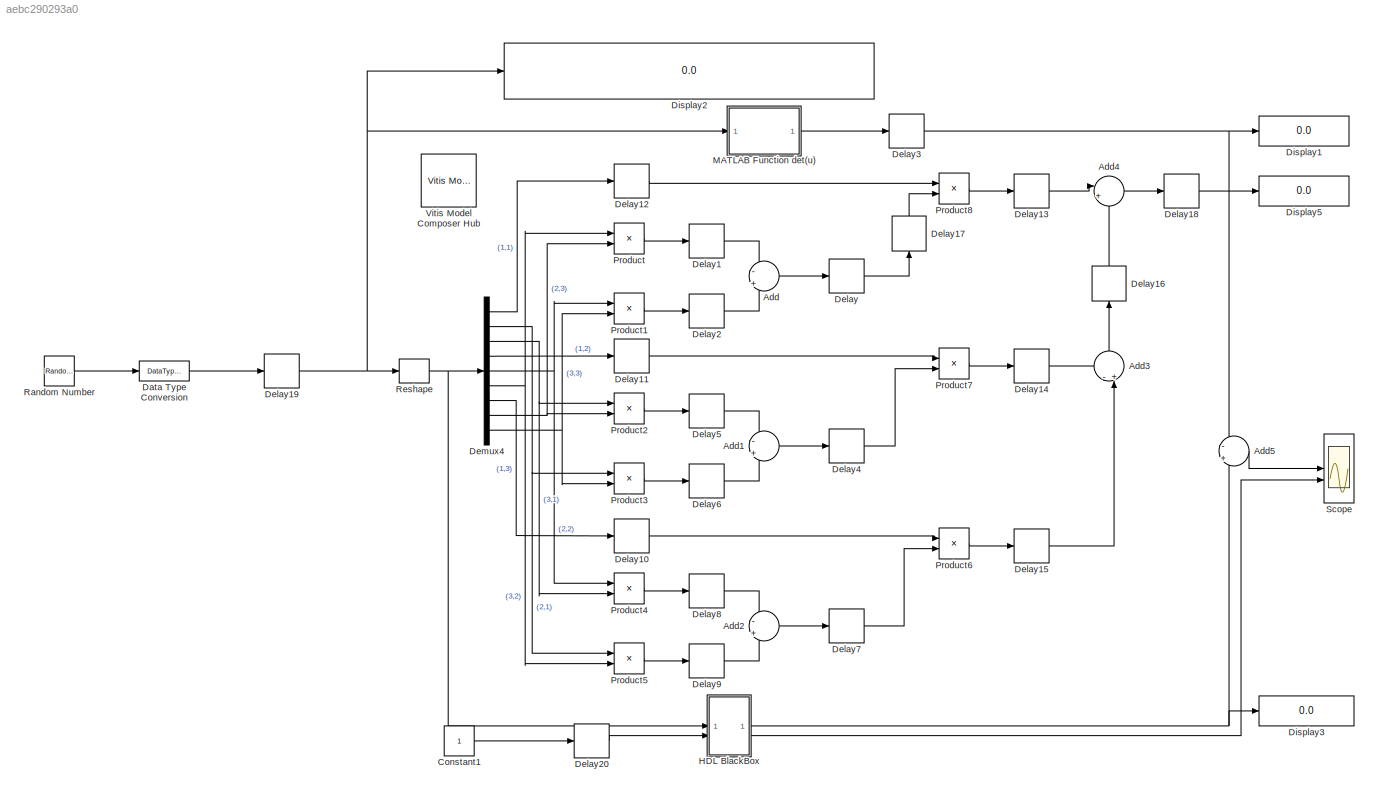
MODEL mdl_aebc290293a0
KIND model
CONFIG AbsTol = auto
CONFIG EnableMultiTasking = off
CONFIG FixedStep = auto
CONFIG MaxStep = auto
CONFIG MinStep = auto
CONFIG RelTol = 1e-3
CONFIG SampleTimeConstraint = Unconstrained
CONFIG SolverName = VariableStepAuto
CONFIG StartTime = 0.0
CONFIG StopTime = 200e-9
BLOCK [Sum] Add
  Inputs = -|+
BLOCK [Sum] Add1
  Inputs = -|+
BLOCK [Sum] Add2
  Inputs = -|+
BLOCK [Sum] Add3
  Inputs = -+|
  NameLocation = right
BLOCK [Sum] Add4
  Inputs = |++
BLOCK [Sum] Add5
  Inputs = -|+
BLOCK [Constant] Constant1
  OutDataTypeStr = single
  SampleTime = 1/805e6
BLOCK [DataTypeConversion] Data Type Conversion
  OutDataTypeStr = single
  RndMeth = Floor
  SaturateOnIntegerOverflow = off
BLOCK [Delay] Delay
  DelayLength = 1
  InputPortMap = u0
BLOCK [Delay] Delay1
  DelayLength = 3
  InputPortMap = u0
BLOCK [Delay] Delay10
  DelayLength = 4
  InputPortMap = u0
BLOCK [Delay] Delay11
  DelayLength = 4
  InputPortMap = u0
BLOCK [Delay] Delay12
  DelayLength = 5
  InputPortMap = u0
BLOCK [Delay] Delay13
  DelayLength = 3
  InputPortMap = u0
BLOCK [Delay] Delay14
  DelayLength = 3
  InputPortMap = u0
BLOCK [Delay] Delay15
  DelayLength = 3
  InputPortMap = u0
BLOCK [Delay] Delay16
  DelayLength = 1
  InputPortMap = u0
  NameLocation = right
BLOCK [Delay] Delay17
  DelayLength = 1
  InputPortMap = u0
  NameLocation = right
BLOCK [Delay] Delay18
  DelayLength = 1
  InputPortMap = u0
BLOCK [Delay] Delay19
  DelayLength = 81
  InputPortMap = u0
BLOCK [Delay] Delay2
  DelayLength = 3
  InputPortMap = u0
BLOCK [Delay] Delay20
  DelayLength = 80
  InputPortMap = u0
BLOCK [Delay] Delay3
  DelayLength = 9
  InputPortMap = u0
BLOCK [Delay] Delay4
  DelayLength = 1
  InputPortMap = u0
BLOCK [Delay] Delay5
  DelayLength = 3
  InputPortMap = u0
BLOCK [Delay] Delay6
  DelayLength = 3
  InputPortMap = u0
BLOCK [Delay] Delay7
  DelayLength = 1
  InputPortMap = u0
BLOCK [Delay] Delay8
  DelayLength = 3
  InputPortMap = u0
BLOCK [Delay] Delay9
  DelayLength = 3
  InputPortMap = u0
BLOCK [Demux] Demux4
  Outputs = 9
BLOCK [Display] Display1
  Decimation = 1
  Format = long
BLOCK [Display] Display2
  Decimation = 1
  Format = long
BLOCK [Display] Display3
  Decimation = 1
  Format = long
BLOCK [Display] Display5
  Decimation = 1
  Format = long
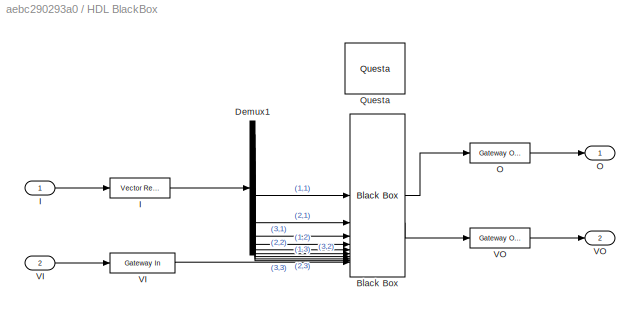
BLOCK [SubSystem] HDL BlackBox
BLOCK [Inport] HDL BlackBox/ I 
BLOCK [Outport] HDL BlackBox/ O 
BLOCK [Inport] HDL BlackBox/ VI 
  Port = 2
BLOCK [Outport] HDL BlackBox/ VO 
  Port = 2
BLOCK [Reference] HDL BlackBox/Black Box  REF=hdlBasic/Black Box
  SourceBlock = hdlBasic/Black Box
  SourceType = Black Box Block
BLOCK [Demux] HDL BlackBox/Demux1
  Outputs = 9
BLOCK [Reference] HDL BlackBox/I  REF=hdlSSR/Vector Real Gateway In
  SourceBlock = hdlSSR/Vector Real Gateway In
  SourceType = Xilinx Vector Gateway In Block
BLOCK [Reference] HDL BlackBox/O  REF=hdlBasic/Gateway Out
  SourceBlock = hdlBasic/Gateway Out
  SourceType = Gateway Out Block
BLOCK [Reference] HDL BlackBox/Questa  REF=hdlUtilities/Questa
  Commented = on
  SourceBlock = hdlUtilities/Questa
  SourceType = Questa HDL Co-Simulation Interface Block
BLOCK [Reference] HDL BlackBox/VI  REF=hdlBasic/Gateway In
  SourceBlock = hdlBasic/Gateway In
  SourceType = Gateway In Block
BLOCK [Reference] HDL BlackBox/VO  REF=hdlBasic/Gateway Out
  SourceBlock = hdlBasic/Gateway Out
  SourceType = Gateway Out Block
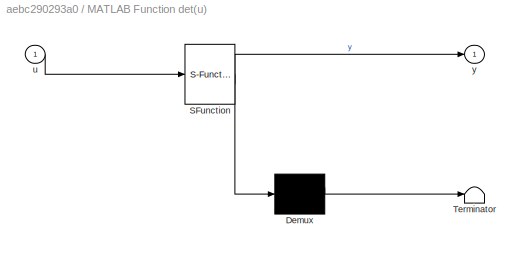
BLOCK [SubSystem] MATLAB Function det(u)
  ErrorFcn = Stateflow.Translate.translate
  PermitHierarchicalResolution = ExplicitOnly
  SFBlockType = MATLAB Function
  TreatAsAtomicUnit = on
BLOCK [Demux] MATLAB Function det(u)/ Demux 
  Outputs = 1
BLOCK [S-Function] MATLAB Function det(u)/ SFunction 
  EnableBusSupport = on
  FunctionName = sf_sfun
  PortCounts = [1 2]
  SFcnIsStateOwnerBlock = off
  SFunctionDeploymentMode = off
  Tag = Stateflow S-Function 2
BLOCK [Terminator] MATLAB Function det(u)/ Terminator 
BLOCK [Inport] MATLAB Function det(u)/u
BLOCK [Outport] MATLAB Function det(u)/y
BLOCK [Product] Product
BLOCK [Product] Product1
BLOCK [Product] Product2
BLOCK [Product] Product3
BLOCK [Product] Product4
BLOCK [Product] Product5
BLOCK [Product] Product6
BLOCK [Product] Product7
BLOCK [Product] Product8
BLOCK [RandomNumber] Random Number
  Mean = zeros(3,3)
  SampleTime = 1.242e-9
  Seed = reshape(1:9,3,3)
  Variance = ones(3,3)
  VectorParams1D = off
BLOCK [Reshape] Reshape
BLOCK [Scope] Scope
  Floating = off
  NumInputPorts = 2
  ScopeSpecificationString = Simulink.scopes.TimeScopeBlockCfg('CurrentConfiguration', extmgr.ConfigurationSet(extmgr.Configuration('Core','General UI',true),extmgr.Configuration('Core','Source UI',true),extmgr.Configuration('Sources','WiredSimulink',true),extmgr.Configuration('Visuals','Time Domain',true,'SerializedDisplays',{struct('MinYLimReal','-0.0000006','MaxYLimReal','0.0000006','YLabelReal','','MinYLimMag','0.0000000'...<+1985ch>
BLOCK [Reference] Vitis Model Composer Hub  REF=vmcUtilities/Vitis Model Composer Hub
  SourceBlock = vmcUtilities/Vitis Model Composer Hub
  SourceType = VMC Hub
  Tag = genX
  UserDataPersistent = on
LINE Add1:1 -> Delay4:1
LINE Add2:1 -> Delay7:1
LINE Add3:1 -> Delay16:1
LINE Add4:1 -> Delay18:1
LINE Add5:1 -> Scope:1
LINE Add:1 -> Delay:1
LINE Constant1:1 -> Delay20:1
LINE Data Type Conversion:1 -> Delay19:1
LINE Delay10:1 -> Product6:1
LINE Delay11:1 -> Product7:1
LINE Delay12:1 -> Product8:1
LINE Delay13:1 -> Add4:1
LINE Delay14:1 -> Add3:1
LINE Delay15:1 -> Add3:2
LINE Delay16:1 -> Add4:2
LINE Delay17:1 -> Product8:2
LINE Delay18:1 -> Display5:1
NET Delay19:1 -> Display2:1, MATLAB Function det(u):1, Reshape:1
LINE Delay1:1 -> Add:1
LINE Delay20:1 -> HDL BlackBox:2
LINE Delay2:1 -> Add:2
NET Delay3:1 -> Add5:1, Display1:1
LINE Delay4:1 -> Product7:2
LINE Delay5:1 -> Add1:1
LINE Delay6:1 -> Add1:2
LINE Delay7:1 -> Product6:2
LINE Delay8:1 -> Add2:1
LINE Delay9:1 -> Add2:2
LINE Delay:1 -> Delay17:1
LINE Demux4:1 -> Delay12:1
NET Demux4:2 -> Product3:1, Product5:1
NET Demux4:3 -> Product2:1, Product4:2
LINE Demux4:4 -> Delay11:1
NET Demux4:5 -> Product1:1, Product4:1
NET Demux4:6 -> Product5:2, Product:1
LINE Demux4:7 -> Delay10:1
NET Demux4:8 -> Product2:2, Product:2
NET Demux4:9 -> Product1:2, Product3:2
LINE HDL BlackBox/ I :1 -> HDL BlackBox/I:1
LINE HDL BlackBox/ VI :1 -> HDL BlackBox/VI:1
LINE HDL BlackBox/Black Box:1 -> HDL BlackBox/O:1
LINE HDL BlackBox/Black Box:2 -> HDL BlackBox/VO:1
LINE HDL BlackBox/Demux1:1 -> HDL BlackBox/Black Box:1
LINE HDL BlackBox/Demux1:2 -> HDL BlackBox/Black Box:2
LINE HDL BlackBox/Demux1:3 -> HDL BlackBox/Black Box:3
LINE HDL BlackBox/Demux1:4 -> HDL BlackBox/Black Box:4
LINE HDL BlackBox/Demux1:5 -> HDL BlackBox/Black Box:5
LINE HDL BlackBox/Demux1:6 -> HDL BlackBox/Black Box:6
LINE HDL BlackBox/Demux1:7 -> HDL BlackBox/Black Box:7
LINE HDL BlackBox/Demux1:8 -> HDL BlackBox/Black Box:8
LINE HDL BlackBox/Demux1:9 -> HDL BlackBox/Black Box:9
LINE HDL BlackBox/I:1 -> HDL BlackBox/Demux1:1
LINE HDL BlackBox/O:1 -> HDL BlackBox/ O :1
LINE HDL BlackBox/VI:1 -> HDL BlackBox/Black Box:10
LINE HDL BlackBox/VO:1 -> HDL BlackBox/ VO :1
NET HDL BlackBox:1 -> Add5:2, Display3:1
LINE HDL BlackBox:2 -> Scope:2
LINE MATLAB Function det(u):1 -> Delay3:1
LINE Product1:1 -> Delay2:1
LINE Product2:1 -> Delay5:1
LINE Product3:1 -> Delay6:1
LINE Product4:1 -> Delay8:1
LINE Product5:1 -> Delay9:1
LINE Product6:1 -> Delay15:1
LINE Product7:1 -> Delay14:1
LINE Product8:1 -> Delay13:1
LINE Product:1 -> Delay1:1
LINE Random Number:1 -> Data Type Conversion:1
NET Reshape:1 -> Demux4:1, HDL BlackBox:1
note: NET lines group one-source signal fan-out (src -> all destinations, sorted); 1:1 wires keep LINE
CHART MATLAB Function
det(u) states=1 transitions=1
  STATE_LABEL 'eML_blk_kernel()'
  STATE_LABEL 'SCRIPT:\nfunction y = fcn(u)\n\ny = det(u);\n'
CHART  states=0 transitions=0
